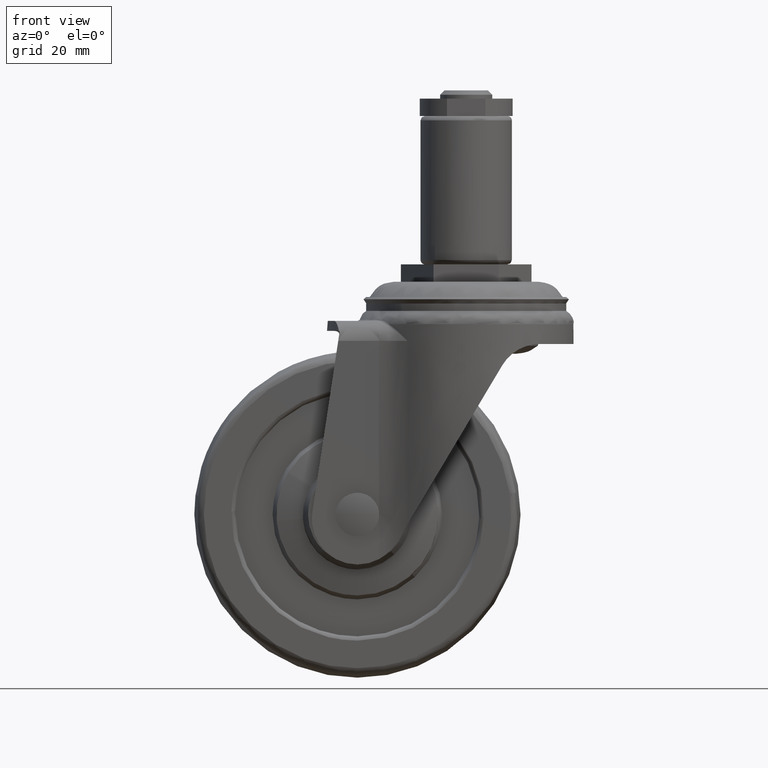
[diagram: clean part render]
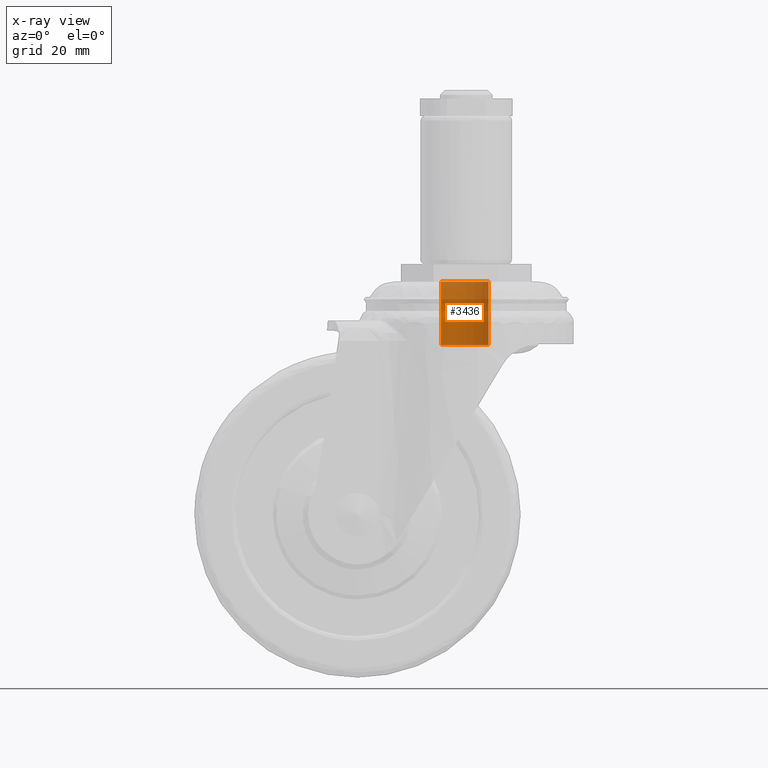
[diagram: x-ray — body ghosted, one internal face saturated and labeled with its STEP entity id]
A machine part, front view, then the same camera in x-ray: the body is ghosted and one INTERNAL B-rep face — a face not visible from any outside direction — is saturated and labeled: STEP entity #3436.
In plain terms, the highlighted face is a freeform B-spline surface patch.
Its self-contained STEP definition (entity closure, byte-faithful):
#3247=CARTESIAN_POINT('',(5.165936575284565,6.108445360723499,-18.555540091954299));
#3248=VERTEX_POINT('',#3247);
#3261=CARTESIAN_POINT('',(5.165936574656104,6.108445361254947,-4.0));
#3262=VERTEX_POINT('',#3261);
#3263=CARTESIAN_POINT('',(5.165936574656104,6.108445361254947,-4.0));
#3264=CARTESIAN_POINT('',(5.165936575284565,6.108445360723499,-18.555540091954299));
#3265=QUASI_UNIFORM_CURVE('',1,(#3263,#3264),.UNSPECIFIED.,.F.,.U.);
#3266=EDGE_CURVE('',#3262,#3248,#3265,.T.);
#3311=CARTESIAN_POINT('',(-5.802994646137058,5.506836446026000,-4.0));
#3312=VERTEX_POINT('',#3311);
#3323=CARTESIAN_POINT('',(-5.802994645237343,5.506836446974052,-18.555540091951659));
#3324=VERTEX_POINT('',#3323);
#3325=CARTESIAN_POINT('',(-5.802994646137058,5.506836446026000,-4.0));
#3326=CARTESIAN_POINT('',(-5.802994645237343,5.506836446974052,-18.555540091951659));
#3327=QUASI_UNIFORM_CURVE('',1,(#3325,#3326),.UNSPECIFIED.,.F.,.U.);
#3328=EDGE_CURVE('',#3312,#3324,#3327,.T.);
#3375=CARTESIAN_POINT('',(-5.802994968098299,5.506836605550030,-3.636111497701160));
#3376=CARTESIAN_POINT('',(-0.602594876675613,10.986914865400555,-3.636111497701160));
#3377=CARTESIAN_POINT('',(5.165936307056203,6.108445143523718,-3.636111497701160));
#3378=CARTESIAN_POINT('',(-5.802994968098299,5.506836605550030,-18.928525806809919));
#3379=CARTESIAN_POINT('',(-0.602594876675613,10.986914865400555,-18.928525806809915));
#3380=CARTESIAN_POINT('',(5.165936307056203,6.108445143523718,-18.928525806809915));
#3388=(BOUNDED_SURFACE()B_SPLINE_SURFACE(2,1,((#3375,#3378),(#3376,#3379),(#3377,#3380)),.UNSPECIFIED.,.F.,.F.,.U.)B_SPLINE_SURFACE_WITH_KNOTS((3,3),(2,2),(0.0,12.721148469670320),(0.0,15.292414309108761),.UNSPECIFIED.)GEOMETRIC_REPRESENTATION_ITEM()RATIONAL_B_SPLINE_SURFACE(((1.0,1.0),(0.718822509939086,0.718822509939086),(0.977505800795127,0.977505800795127)))REPRESENTATION_ITEM('')SURFACE());
#3389=CARTESIAN_POINT('',(0.000001375290993,7.999999999999882,-18.555540091953599));
#3390=VERTEX_POINT('',#3389);
#3391=CARTESIAN_POINT('',(0.000001375290993,7.999999999999882,-18.555540091953599));
#3392=CARTESIAN_POINT('',(0.526503498884653,8.000074501984487,-18.555540091953720));
#3393=CARTESIAN_POINT('',(1.433222395964726,7.910140046414758,-18.555540091953731));
#3394=CARTESIAN_POINT('',(2.705452203088520,7.559786614787805,-18.555540091954040));
#3395=CARTESIAN_POINT('',(3.939379202102014,7.013459735290411,-18.555540091954072));
#3396=CARTESIAN_POINT('',(4.741646755614442,6.467390414205020,-18.555540091954320));
#3397=CARTESIAN_POINT('',(5.165936575284565,6.108445360723499,-18.555540091954299));
#3398=B_SPLINE_CURVE_WITH_KNOTS('',3,(#3391,#3392,#3393,#3394,#3395,#3396,#3397),.UNSPECIFIED.,.F.,.U.,(4,1,1,1,4),(0.000000028269172,1.579497299524169,2.720263301730471,3.948734509259130,5.615984591748688),.UNSPECIFIED.);
#3399=EDGE_CURVE('',#3390,#3248,#3398,.T.);
#3400=ORIENTED_EDGE('',*,*,#3399,.F.);
#3401=CARTESIAN_POINT('',(-5.802994645237343,5.506836446974052,-18.555540091951659));
#3402=CARTESIAN_POINT('',(-5.453874348422469,5.874811731714590,-18.555540091951809));
#3403=CARTESIAN_POINT('',(-4.659690445514447,6.566311688421670,-18.555540091952022));
#3404=CARTESIAN_POINT('',(-3.214320297265518,7.393885632482237,-18.555540091952540));
#3405=CARTESIAN_POINT('',(-1.623142232968499,7.893580889006354,-18.555540091953048));
#3406=CARTESIAN_POINT('',(-0.507235121521469,8.000037016678748,-18.555540091953421));
#3407=CARTESIAN_POINT('',(0.000001375290993,7.999999999999882,-18.555540091953599));
#3408=B_SPLINE_CURVE_WITH_KNOTS('',3,(#3401,#3402,#3403,#3404,#3405,#3406,#3407),.UNSPECIFIED.,.F.,.U.,(4,1,1,1,4),(0.000000038176795,1.521718348384278,3.144907064483166,4.970951135375943,6.492669445599845),.UNSPECIFIED.);
#3409=EDGE_CURVE('',#3324,#3390,#3408,.T.);
#3410=ORIENTED_EDGE('',*,*,#3409,.F.);
#3411=ORIENTED_EDGE('',*,*,#3328,.F.);
#3412=CARTESIAN_POINT('',(0.000001375290855,7.999999999999882,-4.0));
#3413=VERTEX_POINT('',#3412);
#3414=CARTESIAN_POINT('',(-5.802994646137058,5.506836446026000,-4.0));
#3415=CARTESIAN_POINT('',(-5.453874042771874,5.874813846077108,-3.999999999999996));
#3416=CARTESIAN_POINT('',(-4.736543010802701,6.499367447915051,-4.000000000000005));
#3417=CARTESIAN_POINT('',(-3.367882023892606,7.317949610358598,-3.999999999999989));
#3418=CARTESIAN_POINT('',(-1.792239405546626,7.868314115888553,-4.000000000000044));
#3419=CARTESIAN_POINT('',(-0.574865712087239,8.000074944752356,-3.999999999999986));
#3420=CARTESIAN_POINT('',(0.000001375290855,7.999999999999882,-4.0));
#3421=B_SPLINE_CURVE_WITH_KNOTS('',3,(#3414,#3415,#3416,#3417,#3418,#3419,#3420),.UNSPECIFIED.,.F.,.U.,(4,1,1,1,4),(0.000000038177080,1.521718348690793,2.840544065831005,4.768053053055564,6.492669446906769),.UNSPECIFIED.);
#3422=EDGE_CURVE('',#3312,#3413,#3421,.T.);
#3423=ORIENTED_EDGE('',*,*,#3422,.T.);
#3424=CARTESIAN_POINT('',(0.000001375290855,7.999999999999882,-4.0));
#3425=CARTESIAN_POINT('',(0.614259158211831,8.000120708475313,-3.999999999999996));
#3426=CARTESIAN_POINT('',(1.637923833664302,7.881468319924212,-4.000000000000011));
#3427=CARTESIAN_POINT('',(3.427681187772605,7.313990921225582,-3.999999999999982));
#3428=CARTESIAN_POINT('',(4.518490625658388,6.656580801202053,-4.000000000000020));
#3429=CARTESIAN_POINT('',(5.165936574656104,6.108445361254947,-4.0));
#3430=B_SPLINE_CURVE_WITH_KNOTS('',3,(#3424,#3425,#3426,#3427,#3428,#3429),.UNSPECIFIED.,.F.,.U.,(4,1,1,4),(0.000000028269838,1.842750073329499,3.071239650526215,5.615984590925760),.UNSPECIFIED.);
#3431=EDGE_CURVE('',#3413,#3262,#3430,.T.);
#3432=ORIENTED_EDGE('',*,*,#3431,.T.);
#3433=ORIENTED_EDGE('',*,*,#3266,.T.);
#3434=EDGE_LOOP('',(#3400,#3410,#3411,#3423,#3432,#3433));
#3435=FACE_OUTER_BOUND('',#3434,.T.);
#3436=ADVANCED_FACE('',(#3435),#3388,.T.);